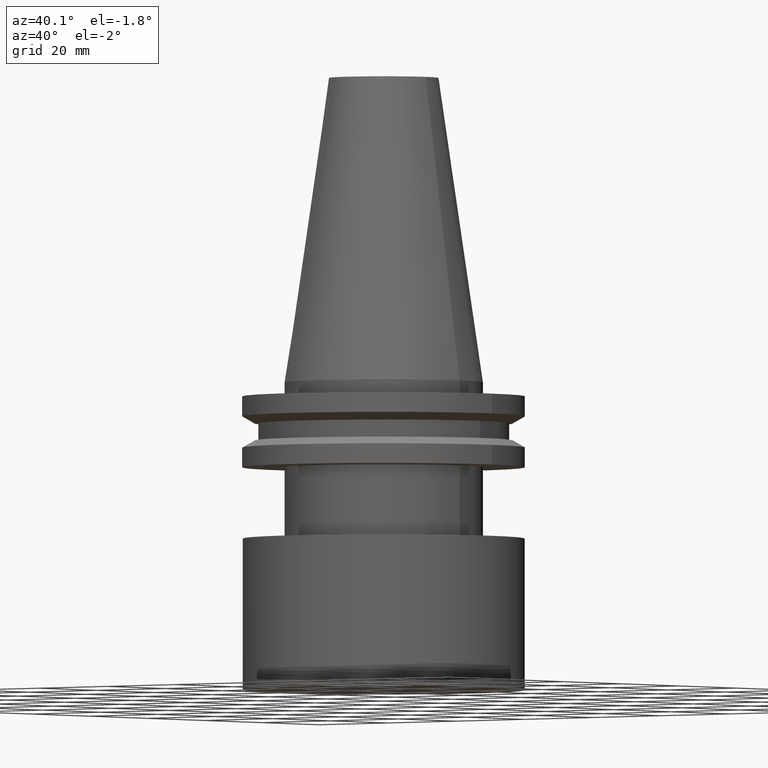
[diagram: clean part render]
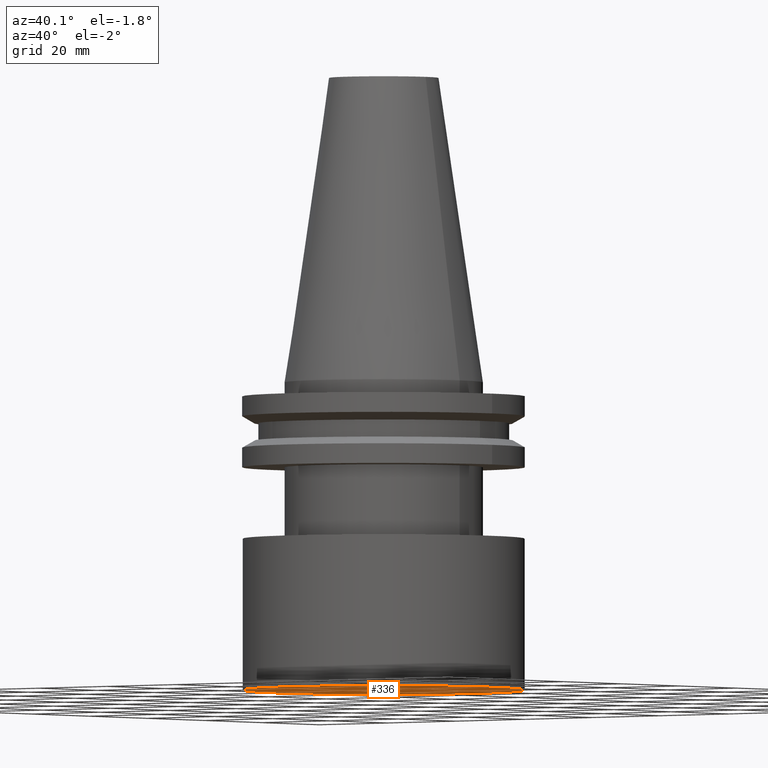
[diagram: same view with one face highlighted and labeled with its STEP entity id]
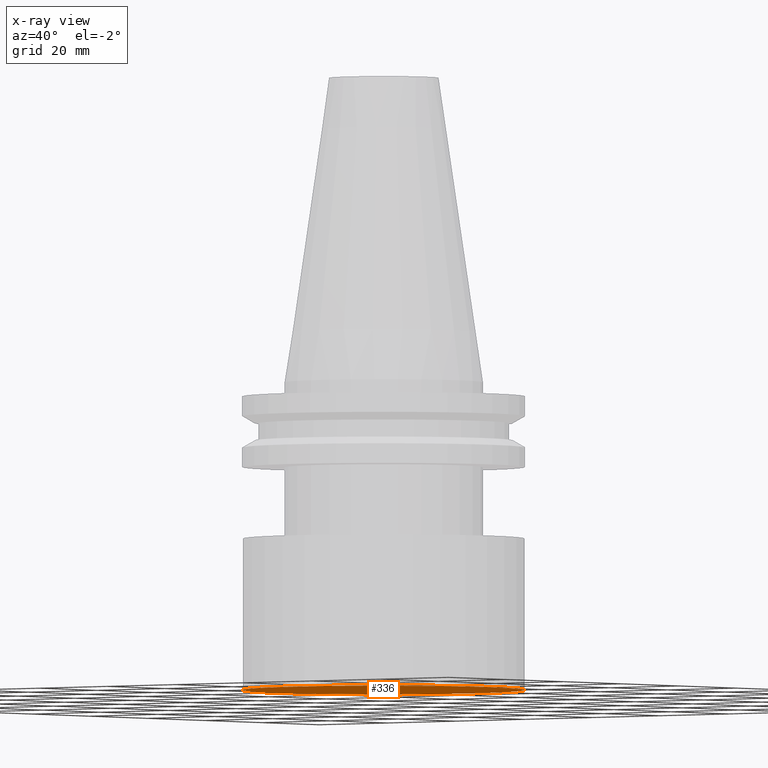
[diagram: x-ray of the same camera — body ghosted, the highlighted face saturated]
A machine part, auxiliary view. The second image highlights one B-rep face of the part: STEP entity #336.
The next image is the same camera in x-ray: the body ghosted, the highlighted face saturated — about 0% of this face is hidden behind the body in this view.
In plain terms, the highlighted planar face has unit normal (0, -0, -1).
Its self-contained STEP definition (entity closure, byte-faithful):
#26 = CIRCLE ( 'NONE', #35, 31.63500000000000867 ) ;
#35 = AXIS2_PLACEMENT_3D ( 'NONE', #219, #95, #215 ) ;
#95 = DIRECTION ( 'NONE',  ( -0.000000000000000000, -2.669333229363891004E-16, -1.000000000000000000 ) ) ;
#97 = EDGE_LOOP ( 'NONE', ( #307 ) ) ;
#106 = CARTESIAN_POINT ( 'NONE',  ( 0.000000000000000000, 31.63500000000000512, -69.00000000000000000 ) ) ;
#176 = AXIS2_PLACEMENT_3D ( 'NONE', #246, #337, #308 ) ;
#215 = DIRECTION ( 'NONE',  ( 0.000000000000000000, 1.000000000000000000, -4.386846153884764444E-16 ) ) ;
#219 = CARTESIAN_POINT ( 'NONE',  ( 0.000000000000000000, -9.062386313690410430E-15, -68.99999999999998579 ) ) ;
#221 = PLANE ( 'NONE',  #176 ) ;
#243 = FACE_OUTER_BOUND ( 'NONE', #97, .T. ) ;
#246 = CARTESIAN_POINT ( 'NONE',  ( 0.000000000000000000, 31.63500000000000512, -69.00000000000000000 ) ) ;
#283 = EDGE_CURVE ( 'NONE', #383, #383, #26, .T. ) ;
#307 = ORIENTED_EDGE ( 'NONE', *, *, #283, .T. ) ;
#308 = DIRECTION ( 'NONE',  ( 0.000000000000000000, 1.000000000000000000, -2.669333229363891004E-16 ) ) ;
#336 = ADVANCED_FACE ( 'NONE', ( #243 ), #221, .T. ) ;
#337 = DIRECTION ( 'NONE',  ( 0.000000000000000000, -2.669333229363891004E-16, -1.000000000000000000 ) ) ;
#383 = VERTEX_POINT ( 'NONE', #106 ) ;